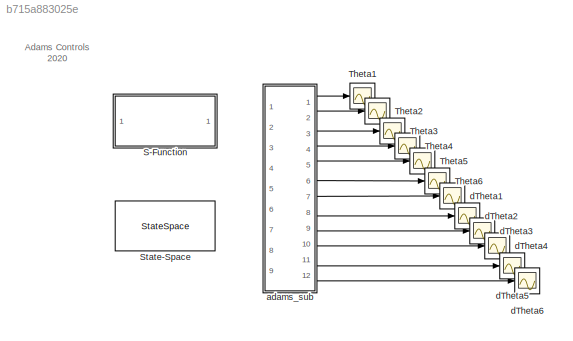
MODEL slx_b715a883025e
KIND model
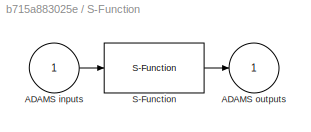
BLOCK [SubSystem] S-Function
  InitFcn = clear mex
  LoadFcn = %check based on dialog box setting for when setting by popup menu                                             \nif exist('ADAMS_solver_type')                                                                                 \n  if strcmp(ADAMS_solver_type,'C++')                                                                          \n    set_param(gcb,'exetyp','C++');                                 ...<+4486ch>
  OpenFcn = open_system(gcb,'mask')                                                                                                                          \nif not(exist('set_some_params_states'))                                                                                                          \n                                                                                                            ...<+625ch>
  Ports = [1, 1]
  RequestExecContextInheritance = off
BLOCK [Inport] S-Function/ADAMS inputs
  IconDisplay = Port number
BLOCK [Outport] S-Function/ADAMS outputs
  IconDisplay = Port number
  InitialOutput = 0
BLOCK [S-Function] S-Function/S-Function
  EnableBusSupport = off
  FunctionName = adams_plant
  Parameters = exevie,exesol,stat,outfil,nampre,o_rate,nam_in,namout,dft,modsim,modani,dt_out,inicmd,exetyp,comtyp,ada_host, workdir,pin_interp_order,pout_extrap_order,pin_extrap_order,pout_interp_order,simulink_lead_cosim
  Ports = [1, 1]
  StopFcn = clear mex
BLOCK [StateSpace] State-Space
  A = ADAMS_a
  B = ADAMS_b
  C = ADAMS_c
  D = ADAMS_d
  Ports = [1, 1]
  X0 = 0
BLOCK [Scope] Theta1 
  Floating = off
  NumInputPorts = 1
  Ports = [1]
  ShowLegends = off
BLOCK [Scope] Theta2 
  Floating = off
  NumInputPorts = 1
  Ports = [1]
  ShowLegends = off
BLOCK [Scope] Theta3 
  Floating = off
  NumInputPorts = 1
  Ports = [1]
  ShowLegends = off
BLOCK [Scope] Theta4 
  Floating = off
  NumInputPorts = 1
  Ports = [1]
  ShowLegends = off
BLOCK [Scope] Theta5 
  Floating = off
  NumInputPorts = 1
  Ports = [1]
  ShowLegends = off
BLOCK [Scope] Theta6 
  Floating = off
  NumInputPorts = 1
  Ports = [1]
  ShowLegends = off
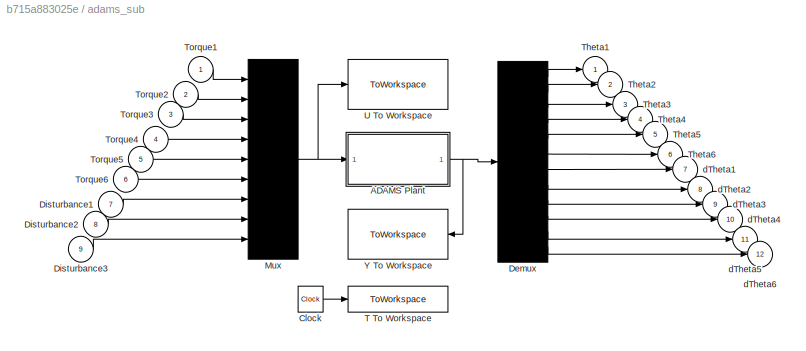
BLOCK [SubSystem] adams_sub
  Ports = [9, 12]
  RequestExecContextInheritance = off
  ShowPortLabels = none
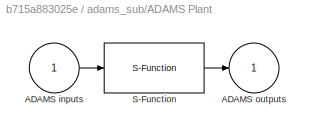
BLOCK [SubSystem] adams_sub/ADAMS Plant
  InitFcn = clear mex
  LoadFcn = %check based on dialog box setting for when setting by popup menu                                             \nif exist('ADAMS_solver_type')                                                                                 \n  if strcmp(ADAMS_solver_type,'C++')                                                                          \n    set_param(gcb,'exetyp','C++');                                 ...<+4486ch>
  OpenFcn = open_system(gcb,'mask')                                                                                                                          \nif not(exist('set_some_params_states'))                                                                                                          \n                                                                                                            ...<+625ch>
  Ports = [1, 1]
  RequestExecContextInheritance = off
BLOCK [Inport] adams_sub/ADAMS Plant/ADAMS inputs
  IconDisplay = Port number
BLOCK [Outport] adams_sub/ADAMS Plant/ADAMS outputs
  IconDisplay = Port number
  InitialOutput = 0
BLOCK [S-Function] adams_sub/ADAMS Plant/S-Function
  EnableBusSupport = off
  FunctionName = adams_plant
  Parameters = exevie,exesol,stat,outfil,nampre,o_rate,nam_in,namout,dft,modsim,modani,dt_out,inicmd,exetyp,comtyp,ada_host, workdir,pin_interp_order,pout_extrap_order,pin_extrap_order,pout_interp_order,simulink_lead_cosim
  Ports = [1, 1]
  StopFcn = clear mex
BLOCK [Clock] adams_sub/Clock
BLOCK [Demux] adams_sub/Demux
  Outputs = 12
  Ports = [1, 12]
BLOCK [Inport] adams_sub/Disturbance1
  IconDisplay = Port number
  Port = 7
BLOCK [Inport] adams_sub/Disturbance2
  IconDisplay = Port number
  Port = 8
BLOCK [Inport] adams_sub/Disturbance3
  IconDisplay = Port number
  Port = 9
BLOCK [Mux] adams_sub/Mux
  Inputs = 9
  Ports = [9, 1]
BLOCK [ToWorkspace] adams_sub/T To Workspace
  MaxDataPoints = 100000
  Ports = [1]
  VariableName = ADAMS_tout
BLOCK [Outport] adams_sub/Theta1 
  IconDisplay = Port number
BLOCK [Outport] adams_sub/Theta2 
  IconDisplay = Port number
  Port = 2
BLOCK [Outport] adams_sub/Theta3 
  IconDisplay = Port number
  Port = 3
BLOCK [Outport] adams_sub/Theta4 
  IconDisplay = Port number
  Port = 4
BLOCK [Outport] adams_sub/Theta5 
  IconDisplay = Port number
  Port = 5
BLOCK [Outport] adams_sub/Theta6 
  IconDisplay = Port number
  Port = 6
BLOCK [Inport] adams_sub/Torque1     
  IconDisplay = Port number
BLOCK [Inport] adams_sub/Torque2     
  IconDisplay = Port number
  Port = 2
BLOCK [Inport] adams_sub/Torque3     
  IconDisplay = Port number
  Port = 3
BLOCK [Inport] adams_sub/Torque4     
  IconDisplay = Port number
  Port = 4
BLOCK [Inport] adams_sub/Torque5     
  IconDisplay = Port number
  Port = 5
BLOCK [Inport] adams_sub/Torque6     
  IconDisplay = Port number
  Port = 6
BLOCK [ToWorkspace] adams_sub/U To Workspace
  MaxDataPoints = 100000
  Ports = [1]
  VariableName = ADAMS_uout
BLOCK [ToWorkspace] adams_sub/Y To Workspace
  MaxDataPoints = 100000
  Ports = [1]
  VariableName = ADAMS_yout
BLOCK [Outport] adams_sub/dTheta1
  IconDisplay = Port number
  Port = 7
BLOCK [Outport] adams_sub/dTheta2
  IconDisplay = Port number
  Port = 8
BLOCK [Outport] adams_sub/dTheta3
  IconDisplay = Port number
  Port = 9
BLOCK [Outport] adams_sub/dTheta4
  IconDisplay = Port number
  Port = 10
BLOCK [Outport] adams_sub/dTheta5
  IconDisplay = Port number
  Port = 11
BLOCK [Outport] adams_sub/dTheta6
  IconDisplay = Port number
  Port = 12
BLOCK [Scope] dTheta1
  Floating = off
  NumInputPorts = 1
  Ports = [1]
  ShowLegends = off
BLOCK [Scope] dTheta2
  Floating = off
  NumInputPorts = 1
  Ports = [1]
  ShowLegends = off
BLOCK [Scope] dTheta3
  Floating = off
  NumInputPorts = 1
  Ports = [1]
  ShowLegends = off
BLOCK [Scope] dTheta4
  Floating = off
  NumInputPorts = 1
  Ports = [1]
  ShowLegends = off
BLOCK [Scope] dTheta5
  Floating = off
  NumInputPorts = 1
  Ports = [1]
  ShowLegends = off
BLOCK [Scope] dTheta6
  Floating = off
  NumInputPorts = 1
  Ports = [1]
  ShowLegends = off
ANNOTATION (root): Adams Controls 2020
LINE S-Function/ADAMS inputs:1 -> S-Function/S-Function:1
LINE S-Function/S-Function:1 -> S-Function/ADAMS outputs:1
LINE adams_sub/ADAMS Plant/ADAMS inputs:1 -> adams_sub/ADAMS Plant/S-Function:1
LINE adams_sub/ADAMS Plant/S-Function:1 -> adams_sub/ADAMS Plant/ADAMS outputs:1
NET adams_sub/ADAMS Plant:1 -> adams_sub/Demux:1, adams_sub/Y To Workspace:1
LINE adams_sub/Clock:1 -> adams_sub/T To Workspace:1
LINE adams_sub/Demux:1 -> adams_sub/Theta1 :1
LINE adams_sub/Demux:10 -> adams_sub/dTheta4:1
LINE adams_sub/Demux:11 -> adams_sub/dTheta5:1
LINE adams_sub/Demux:12 -> adams_sub/dTheta6:1
LINE adams_sub/Demux:2 -> adams_sub/Theta2 :1
LINE adams_sub/Demux:3 -> adams_sub/Theta3 :1
LINE adams_sub/Demux:4 -> adams_sub/Theta4 :1
LINE adams_sub/Demux:5 -> adams_sub/Theta5 :1
LINE adams_sub/Demux:6 -> adams_sub/Theta6 :1
LINE adams_sub/Demux:7 -> adams_sub/dTheta1:1
LINE adams_sub/Demux:8 -> adams_sub/dTheta2:1
LINE adams_sub/Demux:9 -> adams_sub/dTheta3:1
LINE adams_sub/Disturbance1:1 -> adams_sub/Mux:7
LINE adams_sub/Disturbance2:1 -> adams_sub/Mux:8
LINE adams_sub/Disturbance3:1 -> adams_sub/Mux:9
NET adams_sub/Mux:1 -> adams_sub/ADAMS Plant:1, adams_sub/U To Workspace:1
LINE adams_sub/Torque1     :1 -> adams_sub/Mux:1
LINE adams_sub/Torque2     :1 -> adams_sub/Mux:2
LINE adams_sub/Torque3     :1 -> adams_sub/Mux:3
LINE adams_sub/Torque4     :1 -> adams_sub/Mux:4
LINE adams_sub/Torque5     :1 -> adams_sub/Mux:5
LINE adams_sub/Torque6     :1 -> adams_sub/Mux:6
LINE adams_sub:1 -> Theta1 :1
LINE adams_sub:10 -> dTheta4:1
LINE adams_sub:11 -> dTheta5:1
LINE adams_sub:12 -> dTheta6:1
LINE adams_sub:2 -> Theta2 :1
LINE adams_sub:3 -> Theta3 :1
LINE adams_sub:4 -> Theta4 :1
LINE adams_sub:5 -> Theta5 :1
LINE adams_sub:6 -> Theta6 :1
LINE adams_sub:7 -> dTheta1:1
LINE adams_sub:8 -> dTheta2:1
LINE adams_sub:9 -> dTheta3:1
note: NET lines group one-source signal fan-out (src -> all destinations, sorted); 1:1 wires keep LINE
